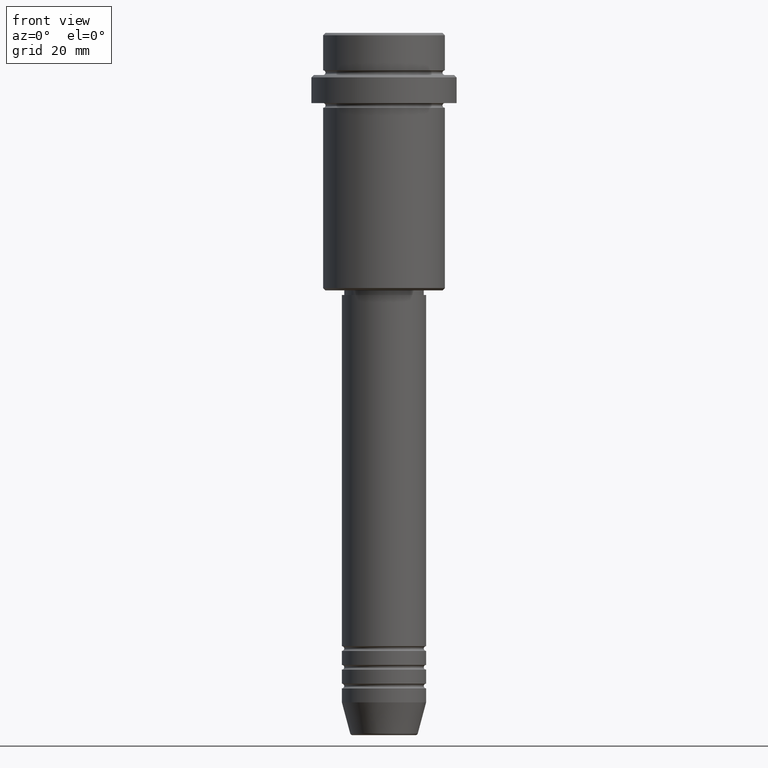
[diagram: clean part render]
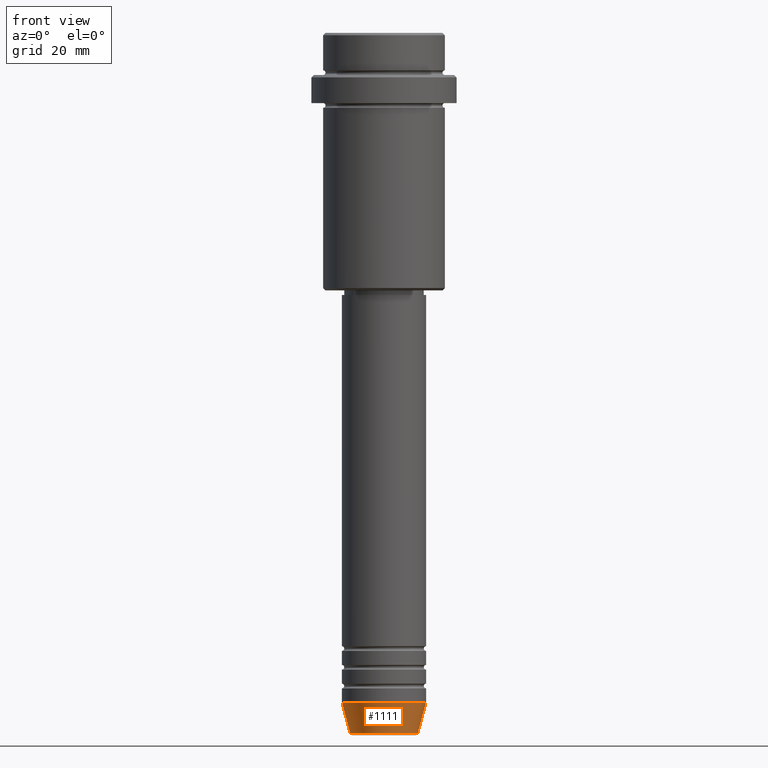
[diagram: same view with one face highlighted and labeled with its STEP entity id]
A machine part, front view. The second image highlights one B-rep face of the part: STEP entity #1111.
In plain terms, the highlighted conical surface has half-angle 15 deg.
Its self-contained STEP definition (entity closure, byte-faithful):
#4 = EDGE_CURVE ( 'NONE', #743, #818, #1024, .T. ) ;
#19 = CIRCLE ( 'NONE', #399, 9.000000000000000000 ) ;
#28 = DIRECTION ( 'NONE',  ( 1.000000000000000000, 0.000000000000000000, 0.000000000000000000 ) ) ;
#29 = VERTEX_POINT ( 'NONE', #761 ) ;
#71 = VERTEX_POINT ( 'NONE', #1007 ) ;
#129 = AXIS2_PLACEMENT_3D ( 'NONE', #1270, #297, #185 ) ;
#183 = AXIS2_PLACEMENT_3D ( 'NONE', #1166, #1052, #619 ) ;
#185 = DIRECTION ( 'NONE',  ( 1.000000000000000000, 0.000000000000000000, 0.000000000000000000 ) ) ;
#233 = EDGE_CURVE ( 'NONE', #818, #29, #718, .T. ) ;
#297 = DIRECTION ( 'NONE',  ( -0.000000000000000000, -0.000000000000000000, 1.000000000000000000 ) ) ;
#299 = ORIENTED_EDGE ( 'NONE', *, *, #233, .T. ) ;
#365 = CARTESIAN_POINT ( 'NONE',  ( -9.000000000000000000, 1.102182119232617714E-15, -143.0000000000000000 ) ) ;
#399 = AXIS2_PLACEMENT_3D ( 'NONE', #1004, #1254, #28 ) ;
#427 = EDGE_LOOP ( 'NONE', ( #1012, #1317, #299, #1382 ) ) ;
#545 = CONICAL_SURFACE ( 'NONE', #183, 9.000000000000000000, 0.2617993877991510177 ) ;
#573 = EDGE_CURVE ( 'NONE', #743, #71, #1021, .T. ) ;
#619 = DIRECTION ( 'NONE',  ( 1.000000000000000000, 0.000000000000000000, 0.000000000000000000 ) ) ;
#640 = CARTESIAN_POINT ( 'NONE',  ( 7.223655072137193045, 0.000000000000000000, -149.6294095225512137 ) ) ;
#718 = LINE ( 'NONE', #1014, #797 ) ;
#743 = VERTEX_POINT ( 'NONE', #1378 ) ;
#761 = CARTESIAN_POINT ( 'NONE',  ( 9.000000000000000000, 0.000000000000000000, -143.0000000000000000 ) ) ;
#797 = VECTOR ( 'NONE', #1291, 1000.000000000000000 ) ;
#818 = VERTEX_POINT ( 'NONE', #640 ) ;
#940 = FACE_OUTER_BOUND ( 'NONE', #427, .T. ) ;
#1004 = CARTESIAN_POINT ( 'NONE',  ( 0.000000000000000000, 0.000000000000000000, -143.0000000000000000 ) ) ;
#1007 = CARTESIAN_POINT ( 'NONE',  ( -9.000000000000000000, 1.102182119232617714E-15, -143.0000000000000000 ) ) ;
#1012 = ORIENTED_EDGE ( 'NONE', *, *, #573, .F. ) ;
#1014 = CARTESIAN_POINT ( 'NONE',  ( 9.000000000000000000, 0.000000000000000000, -143.0000000000000000 ) ) ;
#1021 = LINE ( 'NONE', #365, #1390 ) ;
#1024 = CIRCLE ( 'NONE', #129, 7.223655072137193045 ) ;
#1052 = DIRECTION ( 'NONE',  ( -0.000000000000000000, -0.000000000000000000, 1.000000000000000000 ) ) ;
#1085 = EDGE_CURVE ( 'NONE', #71, #29, #19, .T. ) ;
#1111 = ADVANCED_FACE ( 'NONE', ( #940 ), #545, .T. ) ;
#1166 = CARTESIAN_POINT ( 'NONE',  ( 0.000000000000000000, 0.000000000000000000, -143.0000000000000000 ) ) ;
#1225 = DIRECTION ( 'NONE',  ( -0.2588190451025222938, 3.169619151431783430E-17, 0.9659258262890678681 ) ) ;
#1254 = DIRECTION ( 'NONE',  ( -0.000000000000000000, -0.000000000000000000, 1.000000000000000000 ) ) ;
#1270 = CARTESIAN_POINT ( 'NONE',  ( 0.000000000000000000, 0.000000000000000000, -149.6294095225512137 ) ) ;
#1291 = DIRECTION ( 'NONE',  ( 0.2588190451025222938, 0.000000000000000000, 0.9659258262890678681 ) ) ;
#1317 = ORIENTED_EDGE ( 'NONE', *, *, #4, .T. ) ;
#1378 = CARTESIAN_POINT ( 'NONE',  ( -7.223655072137193045, 9.934123627281765110E-16, -149.6294095225512137 ) ) ;
#1382 = ORIENTED_EDGE ( 'NONE', *, *, #1085, .F. ) ;
#1390 = VECTOR ( 'NONE', #1225, 1000.000000000000000 ) ;